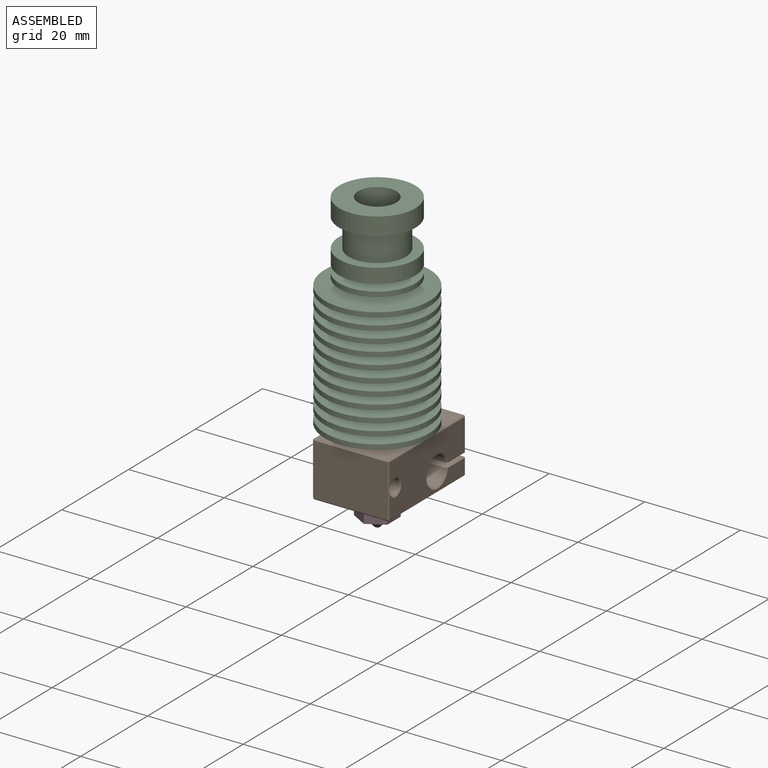
[diagram: assembled view]
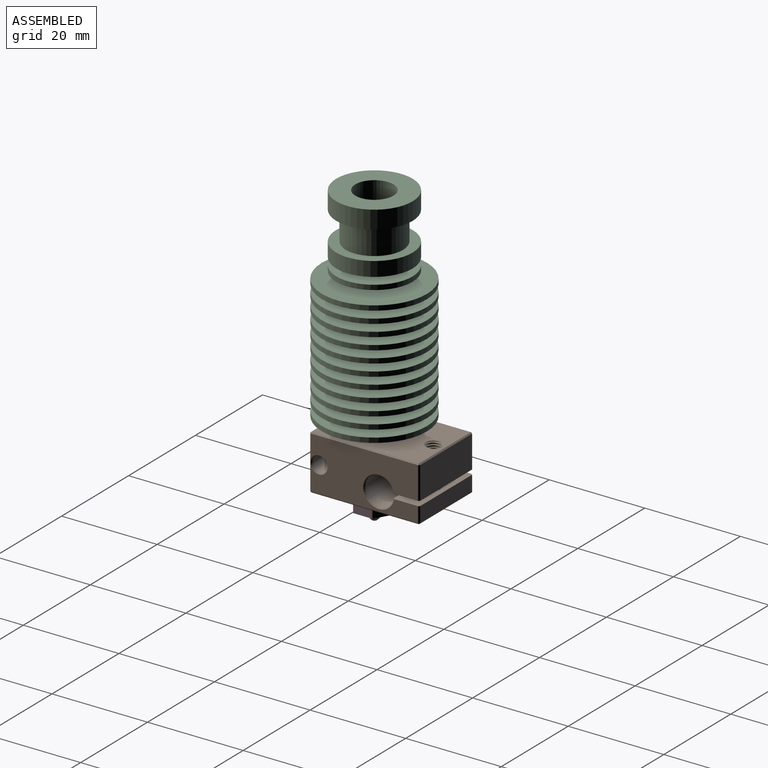
[diagram: assembled view, second angle]
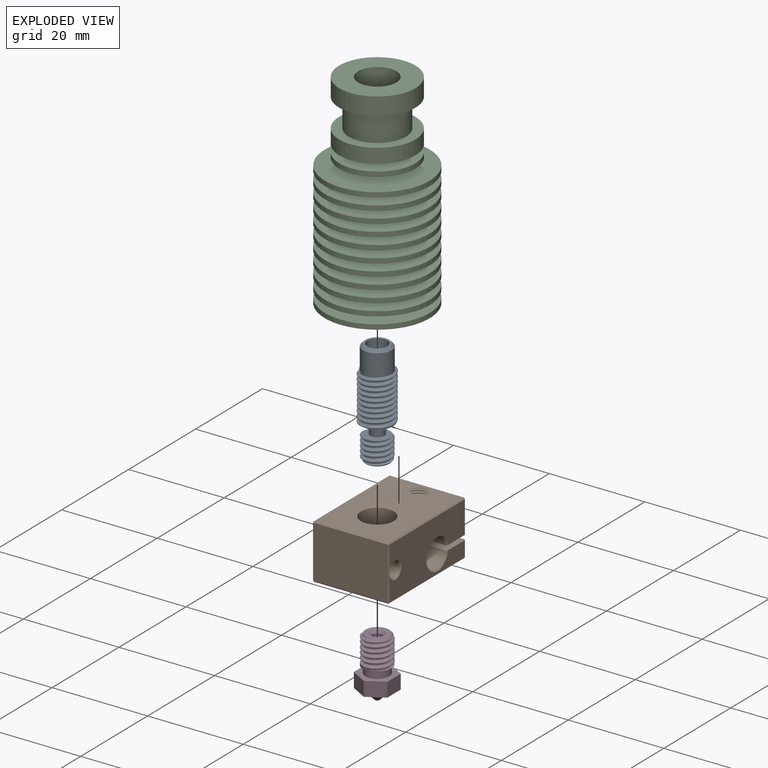
[diagram: exploded view]
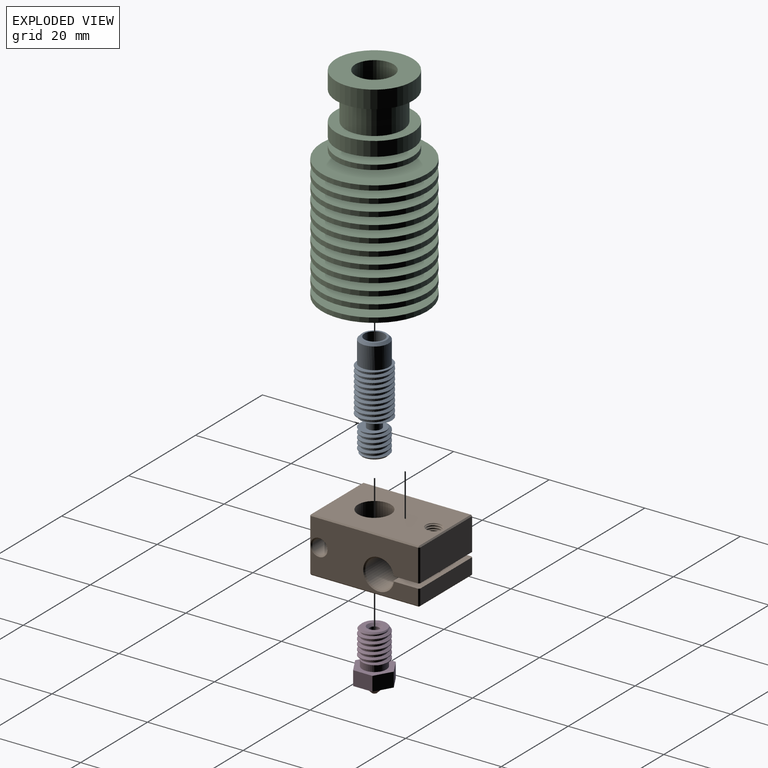
[diagram: exploded view, second angle]
ASSEMBLY  parts=4 mates=3
PART A: 23 faces, bbox 7.1x22.4x7.1 mm
  f0: cylinder r=3mm len=6mm, axis (0,-1,0), area 10.6mm2, adj f9,f13,f17,f18
  f1: cylinder r=3.54mm len=10mm, axis (0,-1,0), area 27.8mm2, adj f11,f12,f20,f21
  f2: cylinder r=2.46mm len=5mm, axis (0,-1,0), area 19.8mm2, adj f13,f14,f16,f17,f18
  f3: cylinder r=3mm len=10mm, axis (0,-1,0), area 47.1mm2, adj f12,f19,f20,f21
  f4: cone r=3mm half-angle=45deg, axis (0,-1,0), area 12.2mm2, adj f5,f15
  f5: cylinder r=3mm len=6mm, axis (0,-1,0), area 84.8mm2, adj f4,f11,f19
  f6: cylinder r=2.1mm len=5.3mm, axis (0,-1,0), area 69.9mm2, adj f15,f22
  f7: cylinder r=1mm len=16.47mm, axis (0,-1,0), area 103.5mm2, adj f10,f14
  f8: cylinder r=1.47mm len=2.95mm, axis (0,-1,0), area 19.5mm2, adj f12,f13
  f9: cone r=2.5mm half-angle=45deg, axis (0,1,0), area 5.2mm2, adj f0,f14,f16,f17,f18
  f10: cone r=1mm half-angle=60deg, axis (0,1,0), area 5.4mm2, adj f7,f22
  f11: plane 6.48x6.31mm, normal (0,1,0), area 4.7mm2, adj f1,f5,f20,f21
  f12: plane 6.55x6.49mm, normal (0,-1,0), area 26.3mm2, adj f1,f3,f8,f20,f21
  f13: plane 5.46x5.4mm, normal (0,1,0), area 16.1mm2, adj f0,f2,f8,f17,f18
  f14: plane 5x5mm, normal (0,-1,0), area 16.4mm2, adj f2,f7,f9,f16,f17
  f15: plane 5x5mm, normal (0,1,0), area 5.8mm2, adj f4,f6
  f16: plane 0.25x0.2mm, normal (0,0,-1), area 0mm2, adj f2,f9,f14,f18
  f17: bspline ~6x6mm, area 51mm2, adj f0,f2,f9,f13,f14
  f18: bspline ~6x5.97mm, area 50.9mm2, adj f0,f2,f9,f13,f16
  f19: plane 3.95x1.88mm, normal (0,-1,0), area 0mm2, adj f3,f5,f20,f21
  f20: bspline ~10.69x7.08mm, area 128.5mm2, adj f1,f3,f11,f12,f19
  f21: bspline ~10.82x7.08mm, area 129.7mm2, adj f1,f3,f11,f12,f19
  f22: plane 4.2x4.2mm, normal (0,1,0), area 6mm2, adj f6,f10
PART B: 57 faces, bbox 23.1x11.9x16.1 mm
  f0: cylinder r=1.45mm len=4.09mm, axis (0,-1,0), area 9.2mm2, adj f5,f15,f53,f54
  f1: cone r=1.7mm half-angle=45deg, axis (0,-1,0), area 1.9mm2, adj f3,f16,f49,f50
  f2: cone r=1.45mm half-angle=45deg, axis (0,1,0), area 1.9mm2, adj f4,f9,f51,f52
  f3: cylinder r=1.45mm len=3.25mm, axis (0,-1,0), area 7.4mm2, adj f1,f20,f49,f50
  f4: cylinder r=1.45mm len=6.75mm, axis (0,-1,0), area 15.4mm2, adj f2,f19,f51,f52
  f5: cone r=1.45mm half-angle=45deg, axis (0,-1,0), area 1.9mm2, adj f0,f16,f53,f54
  f6: cylinder r=1.72mm len=3.5mm, axis (0,1,0), area 4.7mm2, adj f16,f20,f49,f50
  f7: cylinder r=1.72mm len=7mm, axis (0,1,0), area 9.5mm2, adj f9,f19,f51,f52
  f8: cylinder r=1.72mm len=4.32mm, axis (0,-1,0), area 5.8mm2, adj f15,f16,f53,f54
  f9: plane 22.5x15.5mm, normal (0,1,0), area 302.4mm2, adj f2,f7,f10,f35,f36,f44,f45,f51
  f10: cylinder r=3.44mm len=11.5mm, axis (0,-1,0), area 248.7mm2, adj f9,f16
  f11: cone r=3mm half-angle=45deg, axis (0,0,1), area 6.6mm2, adj f14,f19,f20,f22
  f12: cone r=1.8mm half-angle=45deg, axis (0,0,-1), area 3.7mm2, adj f15,f24,f48
  f13: cone r=1.55mm half-angle=45deg, axis (0,0,1), area 3.7mm2, adj f15,f22,f34
  f14: cylinder r=3mm len=15.5mm, axis (0,0,1), area 276.6mm2, adj f11,f19,f20,f26
  f15: cylinder r=1.55mm len=15.5mm, axis (0,0,1), area 142.6mm2, adj f0,f8,f12,f13,f17,f18,f53,f54
  f16: plane 22.5x15.5mm, normal (0,-1,0), area 293.3mm2, adj f1,f5,f6,f8,f10,f32,f33,f42
  f17: cylinder r=1.45mm len=1.98mm, axis (0,-1,0), area 0mm2, adj f15,f55
  f18: cylinder r=1.45mm len=2.54mm, axis (0,-1,0), area 0mm2, adj f15,f54
  f19: plane 16x5.54mm, normal (0,-1,0), area 80.8mm2, adj f4,f7,f11,f14,f21,f22,f24,f26
  f20: plane 16x5.54mm, normal (0,1,0), area 80.8mm2, adj f3,f6,f11,f14,f22,f24,f25,f26
  f21: plane 15.5x6.75mm, normal (-1,0,0), area 104.6mm2, adj f19,f28,f36,f37
  f22: plane 22.5x11mm, normal (0,0,1), area 199.2mm2, adj f11,f13,f19,f20,f27,f28,f33,f34
  f23: plane 15.5x11mm, normal (1,0,0), area 170.5mm2, adj f34,f43,f44,f48
  f24: plane 22.5x11mm, normal (0,0,-1), area 199.2mm2, adj f12,f19,f20,f26,f31,f37,f42,f45
  f25: plane 15.5x3.25mm, normal (-1,0,0), area 50.4mm2, adj f20,f27,f31,f32
  f26: cone r=3.25mm half-angle=45deg, axis (0,0,-1), area 6.6mm2, adj f14,f19,f20,f24
  f27: plane 3.25x0.25mm, normal (-0.71,0,0.71), area 1.1mm2, adj f20,f22,f25,f29
  f28: plane 6.75x0.25mm, normal (-0.71,0,0.71), area 2.4mm2, adj f19,f21,f22,f30
  f29: plane 0.25x0.25mm, normal (-0.58,-0.58,0.58), area 0.1mm2, adj f27,f32,f33
  f30: plane 0.25x0.25mm, normal (-0.58,0.58,0.58), area 0.1mm2, adj f28,f35,f36
  f31: plane 3.25x0.25mm, normal (-0.71,0,-0.71), area 1.1mm2, adj f20,f24,f25,f38
  f32: plane 15.5x0.25mm, normal (-0.71,-0.71,0), area 5.5mm2, adj f16,f25,f29,f38
  f33: plane 22.5x0.25mm, normal (0,-0.71,0.71), area 8mm2, adj f16,f22,f29,f39
  f34: plane 11.07x0.32mm, normal (0.71,0,0.71), area 3.9mm2, adj f13,f22,f23,f39,f40
  f35: plane 22.5x0.25mm, normal (0,0.71,0.71), area 8mm2, adj f9,f22,f30,f40
  f36: plane 15.5x0.25mm, normal (-0.71,0.71,0), area 5.5mm2, adj f9,f21,f30,f41
  f37: plane 6.75x0.25mm, normal (-0.71,0,-0.71), area 2.4mm2, adj f19,f21,f24,f41
  f38: plane 0.25x0.25mm, normal (-0.58,-0.58,-0.58), area 0.1mm2, adj f31,f32,f42
  f39: plane 0.25x0.25mm, normal (0.58,-0.58,0.58), area 0.1mm2, adj f33,f34,f43
  f40: plane 0.25x0.25mm, normal (0.58,0.58,0.58), area 0.1mm2, adj f34,f35,f44
  f41: plane 0.25x0.25mm, normal (-0.58,0.58,-0.58), area 0.1mm2, adj f36,f37,f45
  f42: plane 22.5x0.25mm, normal (0,-0.71,-0.71), area 8mm2, adj f16,f24,f38,f46
  f43: plane 15.5x0.25mm, normal (0.71,-0.71,0), area 5.5mm2, adj f16,f23,f39,f46
  f44: plane 15.5x0.25mm, normal (0.71,0.71,0), area 5.5mm2, adj f9,f23,f40,f47
  f45: plane 22.5x0.25mm, normal (0,0.71,-0.71), area 8mm2, adj f9,f24,f41,f47
  f46: plane 0.25x0.25mm, normal (0.58,-0.58,-0.58), area 0.1mm2, adj f42,f43,f48
  f47: plane 0.25x0.25mm, normal (0.58,0.58,-0.58), area 0.1mm2, adj f44,f45,f48
  f48: plane 11.02x0.27mm, normal (0.71,0,-0.71), area 3.9mm2, adj f12,f23,f24,f46,f47
  f49: bspline ~3.97x3.74mm, area 21.1mm2, adj f1,f3,f6,f16,f20
  f50: bspline ~3.81x3.44mm, area 21.1mm2, adj f1,f3,f6,f16,f20
  f51: bspline ~7.41x3.97mm, area 42.9mm2, adj f2,f4,f7,f9,f19
  f52: bspline ~7.24x3.97mm, area 42.9mm2, adj f2,f4,f7,f9,f19
  f53: bspline ~4.65x3.44mm, area 26.7mm2, adj f0,f5,f8,f15,f16,f56
  f54: bspline ~4.57x3.97mm, area 26.6mm2, adj f0,f5,f8,f15,f16,f18
  f55: bspline ~3.18x1.42mm, area 0.9mm2, adj f15,f17,f56
  f56: cylinder r=1.72mm len=3.09mm, axis (0,-1,0), area 0.2mm2, adj f15,f53,f55
PART C: 74 faces, bbox 22.3x43.3x22.3 mm
  f0: cylinder r=3mm len=3mm, axis (0,-1,0), area 0.6mm2, adj f1,f43,f73
  f1: cylinder r=3mm len=6mm, axis (0,-1,0), area 4.7mm2, adj f0,f2,f72,f73
  f2: cylinder r=3mm len=6mm, axis (0,-1,0), area 4.7mm2, adj f1,f3,f72,f73
  f3: cylinder r=3mm len=6mm, axis (0,-1,0), area 4.7mm2, adj f2,f4,f72,f73
  f4: cylinder r=3mm len=6mm, axis (0,-1,0), area 4.7mm2, adj f3,f5,f72,f73
  f5: cylinder r=3mm len=6mm, axis (0,-1,0), area 4.7mm2, adj f4,f6,f72,f73
  f6: cylinder r=3mm len=6mm, axis (0,-1,0), area 4.7mm2, adj f5,f7,f72,f73
  f7: cylinder r=3mm len=6mm, axis (0,-1,0), area 4.7mm2, adj f6,f8,f72,f73
  f8: cylinder r=3mm len=6mm, axis (0,-1,0), area 4.7mm2, adj f7,f9,f72,f73
  f9: cylinder r=3mm len=6mm, axis (0,-1,0), area 4.7mm2, adj f8,f10,f72,f73
  f10: cylinder r=3mm len=6.1mm, axis (0,-1,0), area 95mm2, adj f9,f12,f71,f72,f73
  f11: cylinder r=3.54mm len=10.44mm, axis (0,-1,0), area 34.5mm2, adj f43,f71,f72,f73
  f12: cone r=3mm half-angle=60deg, axis (0,-1,0), area 16.7mm2, adj f10,f13
  f13: cylinder r=2.1mm len=19.48mm, axis (0,-1,0), area 257.1mm2, adj f12,f14
  f14: cone r=2.1mm half-angle=60deg, axis (0,1,0), area 42mm2, adj f13,f15
  f15: cylinder r=4mm len=8mm, axis (0,-1,0), area 163.4mm2, adj f14,f70
  f16: cylinder r=8mm len=16mm, axis (0,-1,0), area 186mm2, adj f69,f70
  f17: cylinder r=6mm len=12mm, axis (0,-1,0), area 226.2mm2, adj f68,f69
  f18: cylinder r=8mm len=16mm, axis (0,-1,0), area 150.8mm2, adj f67,f68
  f19: cylinder r=4.1mm len=8.2mm, axis (0,-1,0), area 38.6mm2, adj f66,f67
  f20: cylinder r=8mm len=16mm, axis (0,-1,0), area 50.3mm2, adj f65,f66
  f21: cylinder r=4.1mm len=8.2mm, axis (0,-1,0), area 38.6mm2, adj f64,f65
  f22: cylinder r=11mm len=22mm, axis (0,-1,0), area 69.1mm2, adj f63,f64
  f23: cylinder r=4.3mm len=8.6mm, axis (0,-1,0), area 40.5mm2, adj f62,f63
  f24: cylinder r=11mm len=22mm, axis (0,-1,0), area 69.1mm2, adj f61,f62
  f25: cylinder r=4.5mm len=9mm, axis (0,-1,0), area 42.4mm2, adj f60,f61
  f26: cylinder r=11mm len=22mm, axis (0,-1,0), area 69.1mm2, adj f59,f60
  f27: cylinder r=4.7mm len=9.4mm, axis (0,-1,0), area 44.3mm2, adj f58,f59
  f28: cylinder r=11mm len=22mm, axis (0,-1,0), area 69.1mm2, adj f57,f58
  f29: cylinder r=4.9mm len=9.8mm, axis (0,-1,0), area 46.2mm2, adj f56,f57
  f30: cylinder r=11mm len=22mm, axis (0,-1,0), area 69.1mm2, adj f55,f56
  f31: cylinder r=5.1mm len=10.2mm, axis (0,-1,0), area 48.1mm2, adj f54,f55
  f32: cylinder r=11mm len=22mm, axis (0,-1,0), area 69.1mm2, adj f53,f54
  f33: cylinder r=5.3mm len=10.6mm, axis (0,-1,0), area 50mm2, adj f52,f53
  f34: cylinder r=11mm len=22mm, axis (0,-1,0), area 69.1mm2, adj f51,f52
  f35: cylinder r=5.5mm len=11mm, axis (0,-1,0), area 51.8mm2, adj f50,f51
  f36: cylinder r=11mm len=22mm, axis (0,-1,0), area 69.1mm2, adj f49,f50
  f37: cylinder r=5.7mm len=11.4mm, axis (0,-1,0), area 53.7mm2, adj f48,f49
  f38: cylinder r=11mm len=22mm, axis (0,-1,0), area 69.1mm2, adj f47,f48
  f39: cylinder r=5.9mm len=11.8mm, axis (0,-1,0), area 55.6mm2, adj f46,f47
  f40: cylinder r=11mm len=22mm, axis (0,-1,0), area 69.1mm2, adj f45,f46
  f41: cylinder r=6mm len=12mm, axis (0,-1,0), area 56.5mm2, adj f44,f45
  f42: cylinder r=11mm len=22mm, axis (0,-1,0), area 69.1mm2, adj f43,f44
  f43: plane 22.25x22.25mm, normal (0,-1,0), area 346.8mm2, adj f0,f11,f42,f72,f73
  f44: plane 22x22mm, normal (0,1,0), area 267mm2, adj f41,f42
  f45: plane 22x22mm, normal (0,-1,0), area 267mm2, adj f40,f41
  f46: plane 22x22mm, normal (0,1,0), area 270.8mm2, adj f39,f40
  f47: plane 22x22mm, normal (0,-1,0), area 270.8mm2, adj f38,f39
  f48: plane 22x22mm, normal (0,1,0), area 278.1mm2, adj f37,f38
  f49: plane 22x22mm, normal (0,-1,0), area 278.1mm2, adj f36,f37
  f50: plane 22x22mm, normal (0,1,0), area 285.1mm2, adj f35,f36
  f51: plane 22x22mm, normal (0,-1,0), area 285.1mm2, adj f34,f35
  f52: plane 22x22mm, normal (0,1,0), area 291.9mm2, adj f33,f34
  f53: plane 22x22mm, normal (0,-1,0), area 291.9mm2, adj f32,f33
  f54: plane 22x22mm, normal (0,1,0), area 298.4mm2, adj f31,f32
  f55: plane 22x22mm, normal (0,-1,0), area 298.4mm2, adj f30,f31
  f56: plane 22x22mm, normal (0,1,0), area 304.7mm2, adj f29,f30
  f57: plane 22x22mm, normal (0,-1,0), area 304.7mm2, adj f28,f29
  f58: plane 22x22mm, normal (0,1,0), area 310.7mm2, adj f27,f28
  f59: plane 22x22mm, normal (0,-1,0), area 310.7mm2, adj f26,f27
  f60: plane 22x22mm, normal (0,1,0), area 316.5mm2, adj f25,f26
  f61: plane 22x22mm, normal (0,-1,0), area 316.5mm2, adj f24,f25
  f62: plane 22x22mm, normal (0,1,0), area 322mm2, adj f23,f24
  f63: plane 22x22mm, normal (0,-1,0), area 322mm2, adj f22,f23
  f64: plane 22x22mm, normal (0,1,0), area 327.3mm2, adj f21,f22
  f65: plane 16x16mm, normal (0,-1,0), area 148.3mm2, adj f20,f21
  f66: plane 16x16mm, normal (0,1,0), area 148.3mm2, adj f19,f20
  f67: plane 16x16mm, normal (0,-1,0), area 148.3mm2, adj f18,f19
  f68: plane 16x16mm, normal (0,1,0), area 88mm2, adj f17,f18
  f69: plane 16x16mm, normal (0,-1,0), area 88mm2, adj f16,f17
  f70: plane 16x16mm, normal (0,1,0), area 150.8mm2, adj f15,f16
  f71: plane 0.75x0.54mm, normal (0,0,1), area 0.2mm2, adj f10,f11,f72,f73
  f72: bspline ~11.06x7.08mm, area 136.1mm2, adj f1,f2,f3,f4,f5,f6,f7,f8
  f73: bspline ~10.63x7.06mm, area 130.6mm2, adj f0,f1,f2,f3,f4,f5,f6,f7
PART D: 27 faces, bbox 8.1x12.8x7 mm
  f0: cylinder r=3mm len=6mm, axis (0,1,0), area 15.3mm2, adj f10,f11,f23,f24,f25
  f1: cylinder r=2.46mm len=6mm, axis (0,1,0), area 22.9mm2, adj f12,f22,f23,f24,f25,f26
  f2: cylinder r=2.5mm len=5mm, axis (0,1,0), area 23.6mm2, adj f11,f13,f26
  f3: cone r=1.5mm half-angle=45deg, axis (0,1,0), area 5.6mm2, adj f4,f12
  f4: cylinder r=1mm len=10mm, axis (0,-1,0), area 62.8mm2, adj f3,f5
  f5: cone r=1mm half-angle=47.7deg, axis (0,1,0), area 1.9mm2, adj f4,f6
  f6: cylinder r=0.75mm len=1.5mm, axis (0,1,0), area 2.2mm2, adj f5,f8
  f7: cone r=2.5mm half-angle=45deg, axis (0,1,0), area 26.7mm2, adj f20,f21
  f8: cone r=0.75mm half-angle=47.7deg, axis (0,1,0), area 2.2mm2, adj f6,f9
  f9: cylinder r=0.2mm len=0.8mm, axis (0,1,0), area 1mm2, adj f8,f21
  f10: cone r=3mm half-angle=45deg, axis (0,-1,0), area 5.2mm2, adj f0,f12,f22,f23,f24
  f11: plane 6x5.81mm, normal (0,-1,0), area 6.6mm2, adj f0,f2,f24,f25
  f12: plane 5x5mm, normal (0,1,0), area 12.4mm2, adj f1,f3,f10,f22,f23
  f13: plane 8.08x7mm, normal (0,1,0), area 22.8mm2, adj f2,f14,f15,f16,f17,f18,f19
  f14: plane 3.5x3mm, normal (-0.87,0,0.5), area 12.1mm2, adj f13,f15,f19,f20
  f15: plane 3.5x3mm, normal (-0.87,0,-0.5), area 12.1mm2, adj f13,f14,f16,f20
  f16: plane 4.04x3mm, normal (0,0,-1), area 12.1mm2, adj f13,f15,f17,f20
  f17: plane 3.5x3mm, normal (0.87,0,-0.5), area 12.1mm2, adj f13,f16,f18,f20
  f18: plane 3.5x3mm, normal (0.87,0,0.5), area 12.1mm2, adj f13,f17,f19,f20
  f19: plane 4.04x3mm, normal (0,0,1), area 12.1mm2, adj f13,f14,f18,f20
  f20: plane 8.08x7mm, normal (0,-1,0), area 22.8mm2, adj f7,f14,f15,f16,f17,f18,f19
  f21: plane 1x1mm, normal (0,-1,0), area 0.7mm2, adj f7,f9
  f22: plane 0.25x0.2mm, normal (0,0,-1), area 0mm2, adj f1,f10,f12,f24
  f23: bspline ~6.13x6mm, area 58mm2, adj f0,f1,f10,f12,f25
  f24: bspline ~6.25x5.99mm, area 61.6mm2, adj f0,f1,f10,f11,f22,f26
  f25: plane 0.54x0.5mm, normal (0,0,1), area 0.2mm2, adj f0,f1,f11,f23,f26
  f26: plane 1.28x0.36mm, normal (0,1,0), area 0mm2, adj f1,f2,f24,f25
PLACE A rot(axis=(0.58,0.58,0.58),120deg) t=(-10.32,-93.75,72.62)mm
PLACE B rot(axis=(0.58,-0.58,-0.58),120deg) t=(-18.32,-78.75,66.12)mm
PLACE C rot(axis=(1,0,0),90deg) t=(-10.32,-93.75,79.72)mm
PLACE D rot(axis=(0.58,0.58,0.58),120deg) t=(-10.32,-93.75,62.12)mm
MATE fastened D.f0 <-> A.f0  axis (0,0,1) through (-10.32,-93.75,72.62)mm
MATE fastened A.f0 <-> C.f0  axis (0,0,-1) through (-10.32,-93.75,79.72)mm
MATE fastened A.f0 <-> B.f10  axis (0,0,-1) through (-10.32,-93.75,77.62)mm
